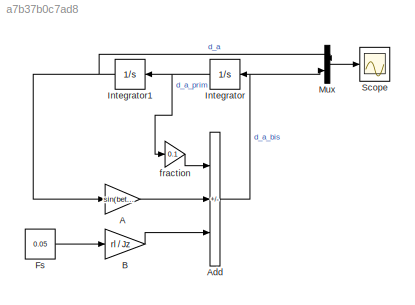
MODEL slx_a7b37b0c7ad8
KIND model
CONFIG AbsTol = auto
CONFIG EnableMultiTasking = off
CONFIG FixedStep = auto
CONFIG MaxStep = auto
CONFIG MinStep = auto
CONFIG RelTol = 1e-3
CONFIG SampleTimeConstraint = Unconstrained
CONFIG Solver = VariableStepAuto
CONFIG SolverName = VariableStepAuto
CONFIG StartTime = 0.0
CONFIG StopTime = 20
BLOCK [Gain] A
  Gain = sin(beta_r) * (g * mw * rw) / Jz
BLOCK [Sum] Add
  IconShape = rectangular
  Inputs = --+
  Ports = [3, 1]
BLOCK [Gain] B
  Gain = rl / Jz
BLOCK [Constant] Fs
  Value = 0.05
  VectorParams1D = off
BLOCK [Integrator] Integrator
  Ports = [1, 1]
BLOCK [Integrator] Integrator1
  Ports = [1, 1]
BLOCK [Mux] Mux
  DisplayOption = bar
  Inputs = 2
  Ports = [2, 1]
BLOCK [Scope] Scope
  Floating = off
  NumInputPorts = 1
  Ports = [1]
  ScopeSpecificationString = Simulink.scopes.TimeScopeBlockCfg('CurrentConfiguration', extmgr.ConfigurationSet(extmgr.Configuration('Core','General UI',true),extmgr.Configuration('Core','Source UI',true),extmgr.Configuration('Sources','WiredSimulink',true),extmgr.Configuration('Visuals','Time Domain',true,'SerializedDisplays',{struct('MinYLimReal','-0.44906','MaxYLimReal','0.49121','YLabelReal','','MinYLimMag','0.00000','MaxY...<+1390ch>
BLOCK [Gain] fraction
  Gain = 0.1
LINE A:1 -> Add:2
NET Add:1 -> Integrator:1, Mux:2
LINE B:1 -> Add:3
LINE Fs:1 -> B:1
NET Integrator1:1 -> A:1, Mux:1
NET Integrator:1 -> Integrator1:1, fraction:1
LINE Mux:1 -> Scope:1
LINE fraction:1 -> Add:1
note: NET lines group one-source signal fan-out (src -> all destinations, sorted); 1:1 wires keep LINE
